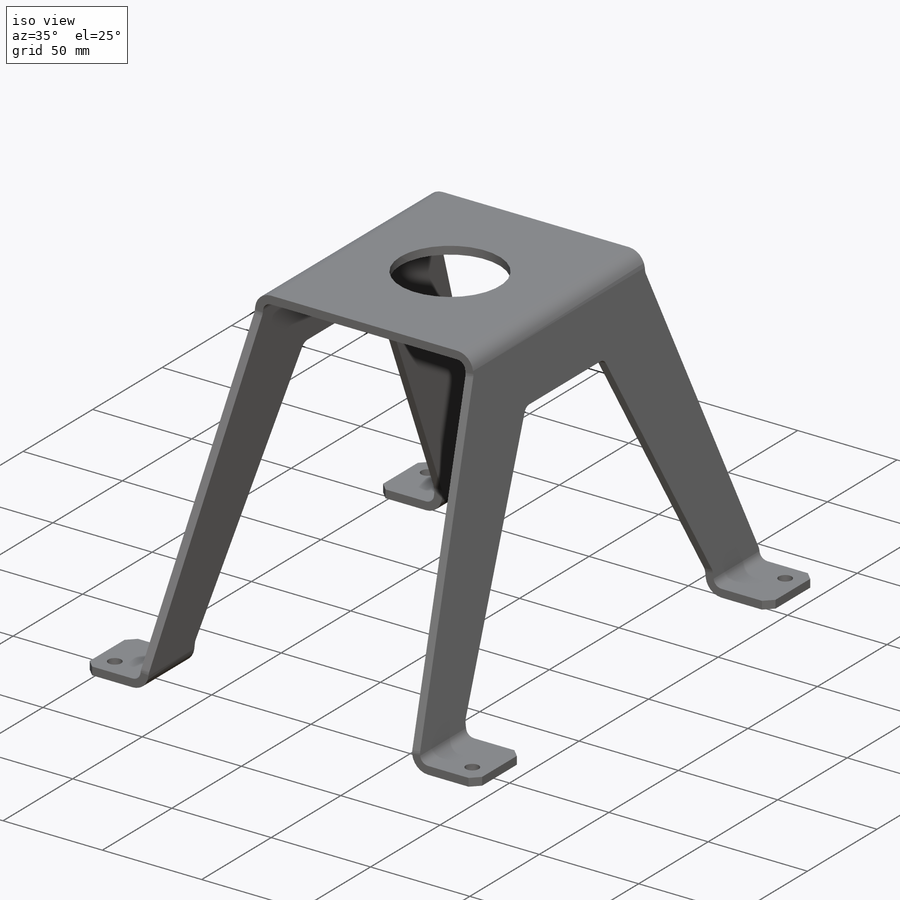
[diagram: iso view]
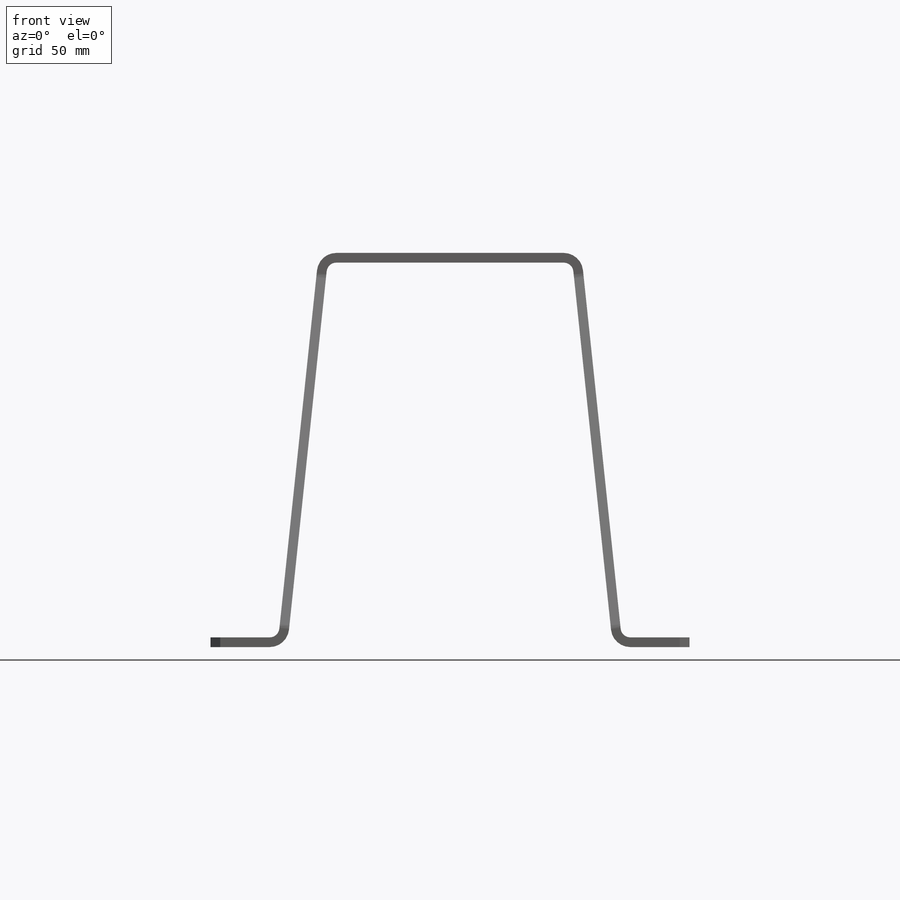
[diagram: front view]
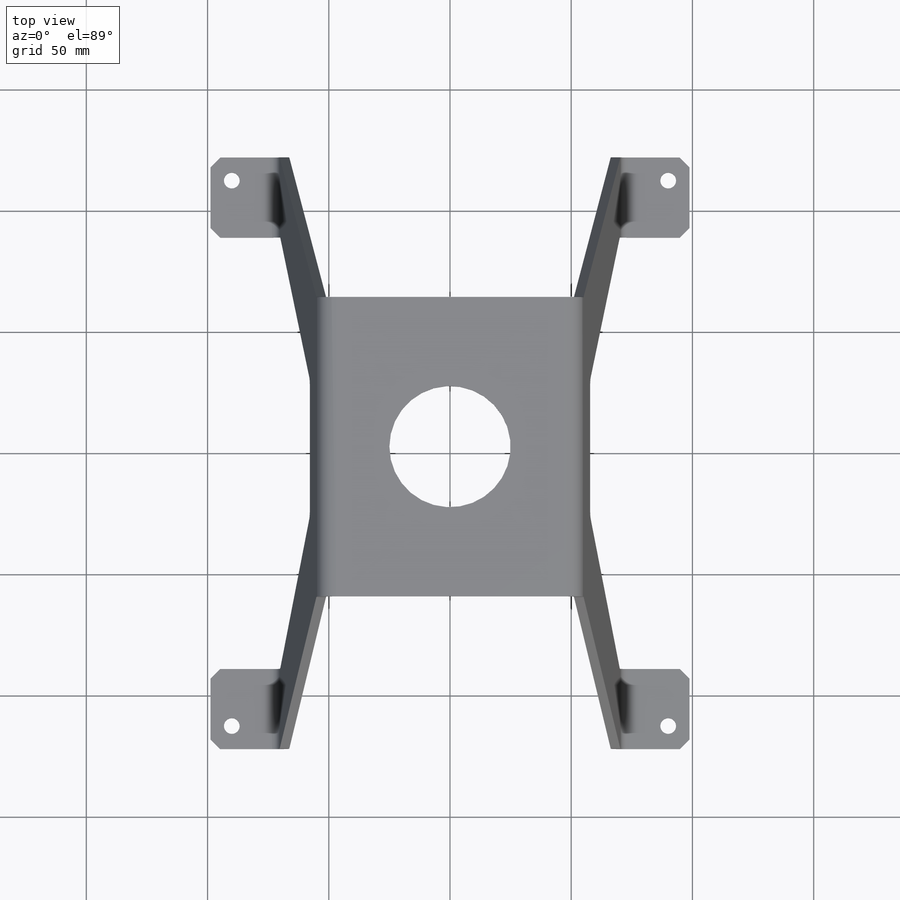
[diagram: top view]
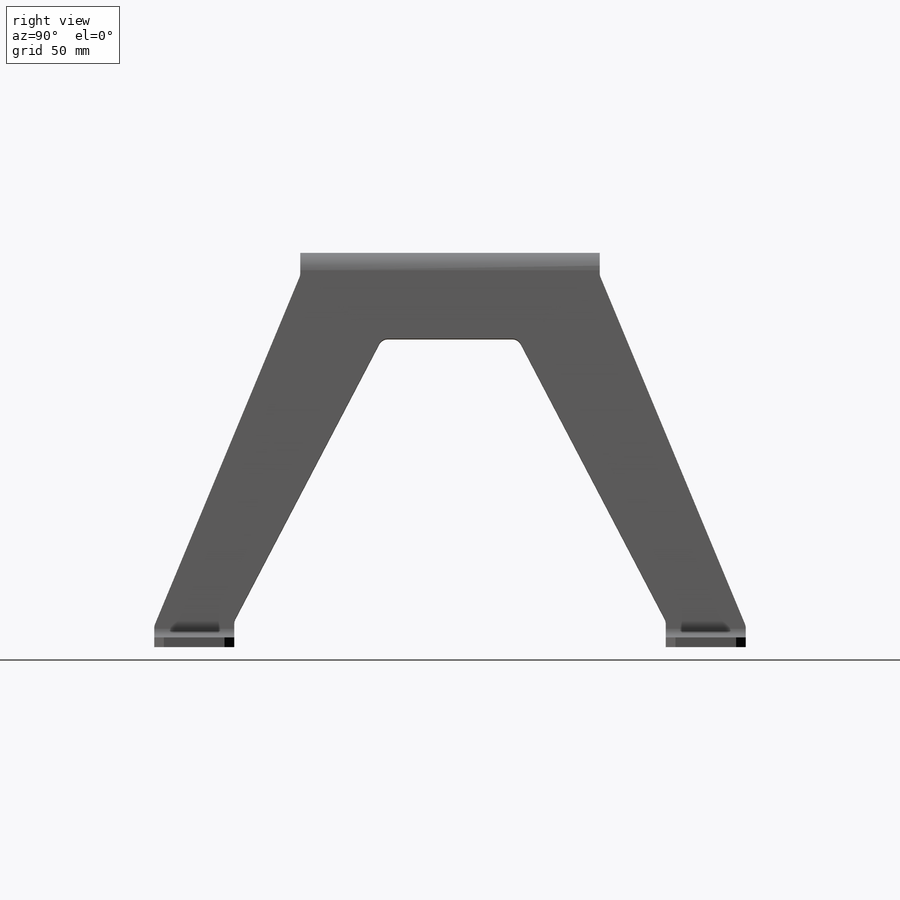
[diagram: right view]
SOLIDWORKS PART (.sldprt)
format: sldprt  version: not decoded by parser v0  size: 477,696 bytes
history: native  units: mm
features: sketch x13, chamfer x6, plane x4, mirror x4, sheet_metal_op x3, cut_extrude x3, material x1, extrude x1 + 6 further entries (+9 scaffold rows collapsed)
feature tree (50):
  scaffold x9  (default folders/planes/origin — collapsed)
  material  "Ст 3 ГОСТ 380-2005"
  plane  "Спереди"
  plane  "Сверху"
  plane  "Слева"
  "Начало координат"
  "PTricksFreeParameters"
  "PTricksEqu"
  "PTricksFreeParameters"
  sketch  "Эскиз1"  dims[c1.D1=~30.713808mm c2.D1=25.0mm c2.D2=101.0mm c3.D1=25.0mm c3.D2=101.0mm c4.D1=25.0mm c4.D2=101.0mm c4.D3=25.0mm c5.D3=~63.65024deg c6.D3=~209.43951mm c6.D4=159.0mm]
  sheet_metal_op  "Листовой металл1"  Толщина=4mm
  sheet_metal_op  "Базовая кромка1"
  sheet_metal_op  "Основание2"
  sketch  "Эскиз3"  dims[D1=50.0mm]
  cut_extrude  "Вытянуть1"  [1 undecoded]
  plane  "Опорная"  Offset=163mm
  sketch  "Эскиз4"  dims[c1.D1=244.0mm c1.D2=44.0mm c1.D3=25.0mm c1.D4=50.5mm c1.D5=4.0mm c2.D2=44.0mm c2.D4=101.0mm c2.D6=197.0mm]
  sketch  "Эскиз30"  dims[c1.D5=8.0mm c1.D6=4.0mm c1.D1=4.0mm c1.D2=~148.213197mm c2.D2=~101.272751mm c3.D2=~148.213197mm c4.D2=~209.43951mm c4.D3=~92.093535mm c4.D4=106.5mm c4.D7=~147.126379mm c4.D8=197.0mm]
  sketch  "Эскиз31"  dims[c1.D2=4.0mm c1.D3=4.0mm c1.D1=8.0mm c1.D4=143.0mm c2.D4=~785.632315mm c2.D5=123.5mm c2.D6=~143.937667mm c3.D6=~87.266463mm c3.D7=30.0mm c3.D8=~63.821035mm c4.D7=30.0mm c4.D9=8.0mm c4.D10=155.0mm c4.D11=244.0mm]
  sketch  "Эскиз33"  dims[c1.D1=4.0mm c1.D2=155.0mm c1.D3=244.0mm c1.D4=~83.013814mm c2.D4=~616.117038mm c3.D4=~83.013814mm c4.D4=~785.398163mm]
  extrude  "Вытянуть2"  [1 undecoded]
  sketch  "Эскиз39"  dims[c1.D1=4.0mm c1.D2=33.0mm c1.D3=~155.849538mm c2.D3=~87.266463mm c2.D4=128.0mm c2.D5=~51.310712mm c2.D6=10.0mm]
  cut_extrude  "Вытянуть3"  [1 undecoded]
  mirror  "Зеркальное отражение1"
  sketch  "Эскиз36"
  sketch  "Эскиз38"
  sketch  "Эскиз41"
  sketch  "Эскиз43"  dims[D1=4.0mm D4=~1466.076572mm D5=3.0 D8=~0.114592deg D9=~0.114592deg]
  mirror  "EdgeBend2"
  mirror  "EdgeBend3"
  mirror  "EdgeBend4"
  sketch  "Эскиз44"  dims[c1.D1=11.0mm c1.D2=11.0mm c1.D9=11.0mm c1.D10=6.5mm c2.D2=4.0mm c2.D3=~3.269244mm c2.D4=225.0mm c2.D5=180.0mm c2.D6=4.0mm c2.D7=4.0mm c2.D8=~13.080229mm c3.D8=~1570.796327mm c4.D8=4.0mm c4.D9=6.0mm]
  cut_extrude  "Вытянуть4"  [1 undecoded]
  chamfer  "Фаска1"  Distance=4mm
  "Развертка1"
  sketch  "Сгиб-Линии1"
  "Преобразование эскиза1"
  chamfer  "Плоское состояние-<Основание2>1"  [1 undecoded]
  chamfer  "Плоское состояние-<EdgeBend1>1"  [1 undecoded]
  chamfer  "Плоское состояние-<EdgeBend2>1"  [1 undecoded]
  chamfer  "Плоское состояние-<EdgeBend3>1"  [1 undecoded]
  chamfer  "Плоское состояние-<EdgeBend4>1"  [1 undecoded]
decode coverage: 11 of 30 modeling features carry decoded parameters; 6 rows unclassified (native names shown)
note: ~ marks probable driven/reference dimensions
note: 9 parameter values undecoded
summary: no parameter record found for 9 features
note: suppression state not decoded; provenance and decode notes live in map.json
